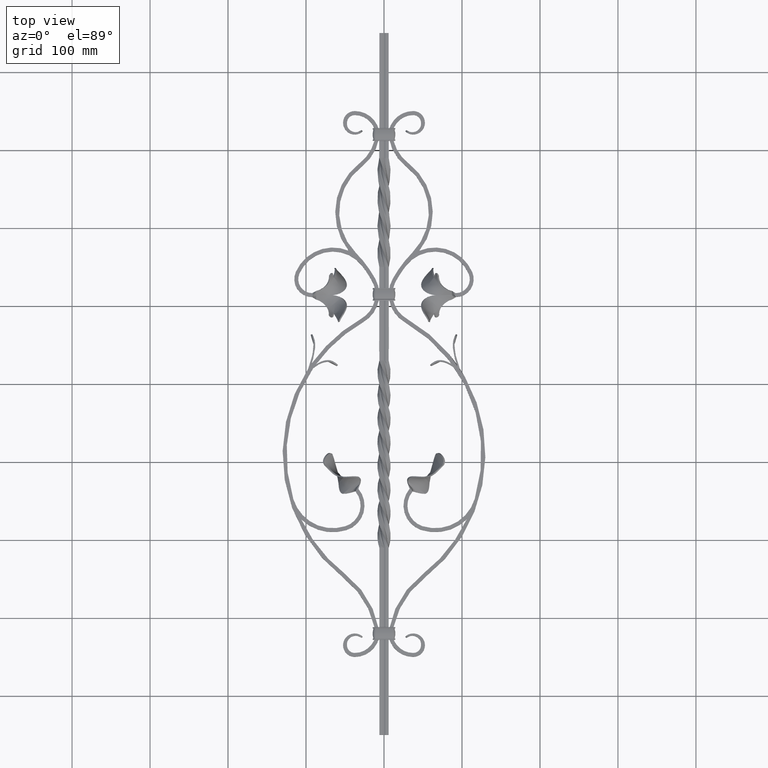
[diagram: clean part render]
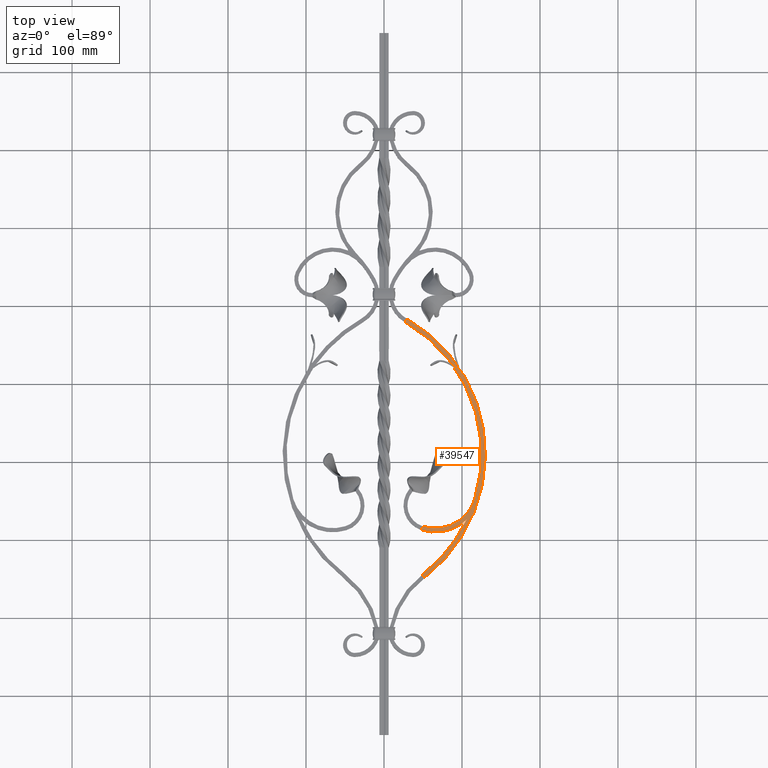
[diagram: same view with one face highlighted and labeled with its STEP entity id]
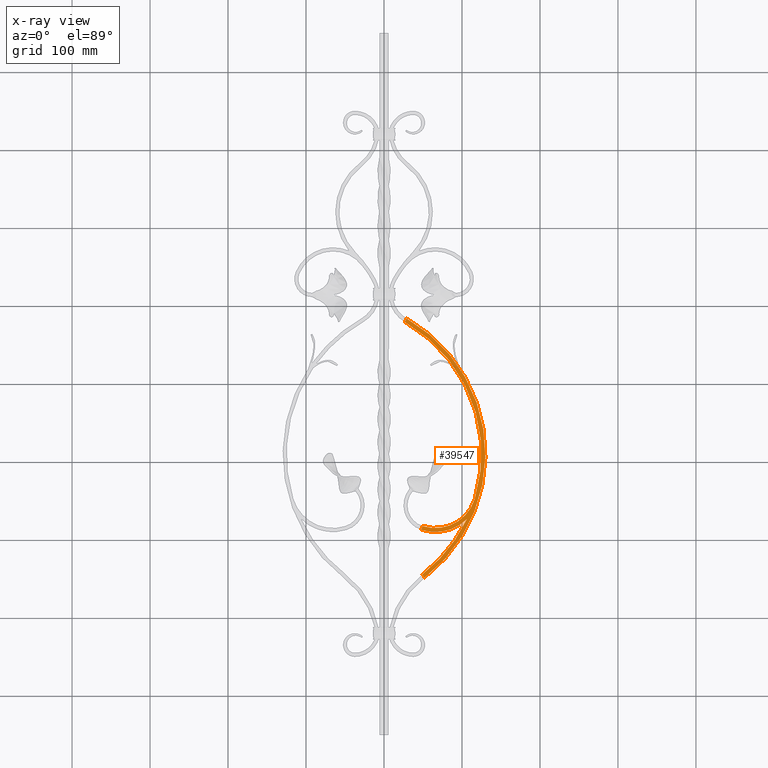
[diagram: x-ray of the same camera — body ghosted, the highlighted face saturated]
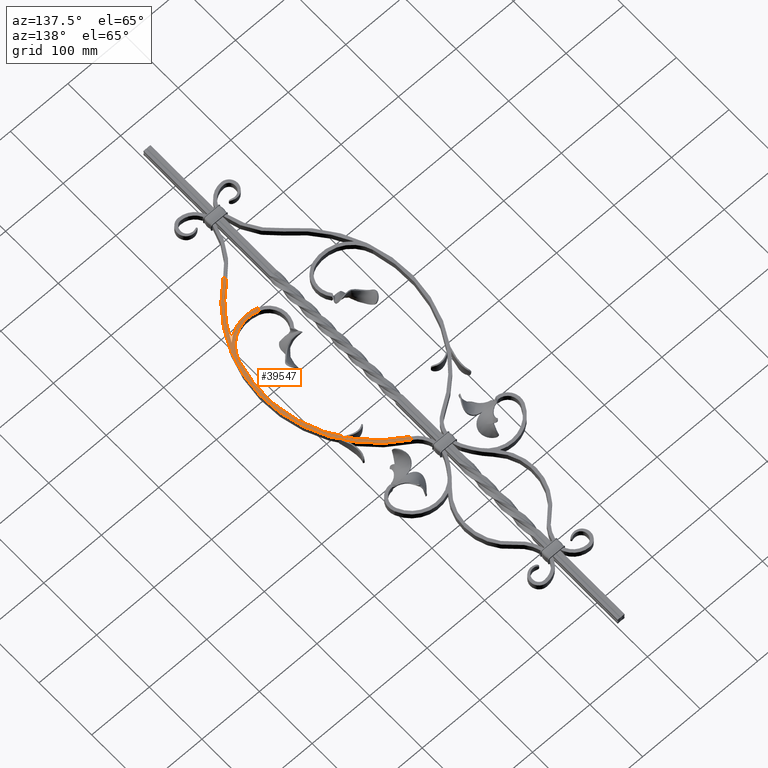
[diagram: same view with one face highlighted and labeled with its STEP entity id]
A machine part, top view. The second image highlights one B-rep face of the part: STEP entity #39547.
The next image is the same camera in x-ray: the body ghosted, the highlighted face saturated — about 0% of this face is hidden behind the body in this view.
A second angle (auxiliary view) of the same face is appended — the face is thin or edge-on in the first view.
In plain terms, the highlighted planar face has unit normal (0, 0, 1).
Its self-contained STEP definition (entity closure, byte-faithful):
#1256 = DIRECTION ( 'NONE',  ( 0.9553274066904219319, -0.2955495661071982361, 0.000000000000000000 ) ) ;
#1265 = DIRECTION ( 'NONE',  ( 1.000000000000000000, 0.000000000000000000, -0.000000000000000000 ) ) ;
#2281 = VERTEX_POINT ( 'NONE', #50925 ) ;
#3935 = ORIENTED_EDGE ( 'NONE', *, *, #8557, .T. ) ;
#4474 = CIRCLE ( 'NONE', #19596, 195.1081432478146667 ) ;
#5733 = PLANE ( 'NONE',  #27331 ) ;
#5918 = CARTESIAN_POINT ( 'NONE',  ( 26.69155741923248826, 79.40190552352058262, 6.000000000000000000 ) ) ;
#6349 = AXIS2_PLACEMENT_3D ( 'NONE', #37539, #11920, #16741 ) ;
#6594 = VERTEX_POINT ( 'NONE', #52899 ) ;
#8003 = CIRCLE ( 'NONE', #30603, 53.00000000000003553 ) ;
#8360 = CIRCLE ( 'NONE', #13093, 195.1081432478146667 ) ;
#8557 = EDGE_CURVE ( 'NONE', #6594, #14319, #8360, .T. ) ;
#8754 = DIRECTION ( 'NONE',  ( -0.000000000000000000, -0.000000000000000000, -1.000000000000000000 ) ) ;
#9268 = DIRECTION ( 'NONE',  ( 0.3060664284284465575, 0.9520101582383744265, -0.000000000000000000 ) ) ;
#9841 = DIRECTION ( 'NONE',  ( 0.000000000000000000, 0.000000000000000000, 1.000000000000000000 ) ) ;
#10037 = DIRECTION ( 'NONE',  ( -0.4961335752352382111, -0.8682462067433984743, -0.000000000000000000 ) ) ;
#11106 = CARTESIAN_POINT ( 'NONE',  ( 65.65166071071115539, -131.9999998333333338, 6.000000000000000000 ) ) ;
#11458 = VECTOR ( 'NONE', #44178, 1000.000000000000114 ) ;
#11854 = ORIENTED_EDGE ( 'NONE', *, *, #45545, .T. ) ;
#11920 = DIRECTION ( 'NONE',  ( -0.000000000000000000, -0.000000000000000000, -1.000000000000000000 ) ) ;
#12580 = CIRCLE ( 'NONE', #41352, 58.00000000000002132 ) ;
#13093 = AXIS2_PLACEMENT_3D ( 'NONE', #26151, #34404, #29889 ) ;
#13716 = VECTOR ( 'NONE', #10037, 1000.000000000000000 ) ;
#14319 = VERTEX_POINT ( 'NONE', #23046 ) ;
#15918 = EDGE_LOOP ( 'NONE', ( #53054, #23154, #36692, #11854, #21143, #38377, #55108, #3935 ) ) ;
#16044 = LINE ( 'NONE', #30330, #48819 ) ;
#16387 = LINE ( 'NONE', #26795, #13716 ) ;
#16741 = DIRECTION ( 'NONE',  ( 0.4961335752352377670, 0.8682462067433986963, 0.000000000000000000 ) ) ;
#19180 = CARTESIAN_POINT ( 'NONE',  ( 49.05424102247574325, -244.4911442810934545, 6.000000000000000000 ) ) ;
#19596 = AXIS2_PLACEMENT_3D ( 'NONE', #21591, #8754, #43078 ) ;
#19720 = VERTEX_POINT ( 'NONE', #49780 ) ;
#21143 = ORIENTED_EDGE ( 'NONE', *, *, #40263, .T. ) ;
#21591 = CARTESIAN_POINT ( 'NONE',  ( -70.10814324781469509, -89.99999975614214520, 6.000000000000000000 ) ) ;
#23046 = CARTESIAN_POINT ( 'NONE',  ( 49.05424102247577167, -244.4911442810934830, 6.000000000000000000 ) ) ;
#23154 = ORIENTED_EDGE ( 'NONE', *, *, #42707, .F. ) ;
#23277 = VERTEX_POINT ( 'NONE', #46014 ) ;
#23516 = VERTEX_POINT ( 'NONE', #49886 ) ;
#26151 = CARTESIAN_POINT ( 'NONE',  ( -70.10814324781469509, -89.99999975614214520, 6.000000000000000000 ) ) ;
#26774 = DIRECTION ( 'NONE',  ( -0.000000000000000000, -0.000000000000000000, -1.000000000000000000 ) ) ;
#26795 = CARTESIAN_POINT ( 'NONE',  ( 26.69155741923243141, 79.40190552352061104, 6.000000000000000000 ) ) ;
#27331 = AXIS2_PLACEMENT_3D ( 'NONE', #5918, #9841, #1265 ) ;
#28002 = FACE_OUTER_BOUND ( 'NONE', #15918, .T. ) ;
#29889 = DIRECTION ( 'NONE',  ( 0.4961335752352377670, 0.8682462067433986963, 0.000000000000000000 ) ) ;
#30330 = CARTESIAN_POINT ( 'NONE',  ( 47.89980786186133344, -187.2165890111591580, 6.000000000000000000 ) ) ;
#30603 = AXIS2_PLACEMENT_3D ( 'NONE', #11106, #37264, #49585 ) ;
#31296 = CARTESIAN_POINT ( 'NONE',  ( 65.65166071071115539, -131.9999998333333338, 6.000000000000000000 ) ) ;
#31314 = CARTESIAN_POINT ( 'NONE',  ( 47.89980786186134765, -187.2165890111591011, 6.000000000000000000 ) ) ;
#32195 = CARTESIAN_POINT ( 'NONE',  ( 52.10799322078705842, -248.4502600297560946, 6.000000000000000000 ) ) ;
#32217 = LINE ( 'NONE', #19180, #11458 ) ;
#33301 = VERTEX_POINT ( 'NONE', #32195 ) ;
#34404 = DIRECTION ( 'NONE',  ( -0.000000000000000000, -0.000000000000000000, -1.000000000000000000 ) ) ;
#35062 = EDGE_CURVE ( 'NONE', #33301, #14319, #32217, .T. ) ;
#36633 = EDGE_CURVE ( 'NONE', #46848, #2281, #16044, .T. ) ;
#36692 = ORIENTED_EDGE ( 'NONE', *, *, #46973, .T. ) ;
#37264 = DIRECTION ( 'NONE',  ( -0.000000000000000000, -0.000000000000000000, -1.000000000000000000 ) ) ;
#37539 = CARTESIAN_POINT ( 'NONE',  ( -70.10814324781469509, -89.99999975614214520, 6.000000000000000000 ) ) ;
#38377 = ORIENTED_EDGE ( 'NONE', *, *, #36633, .F. ) ;
#39547 = ADVANCED_FACE ( 'NONE', ( #28002 ), #5733, .T. ) ;
#40263 = EDGE_CURVE ( 'NONE', #23516, #2281, #8003, .T. ) ;
#41352 = AXIS2_PLACEMENT_3D ( 'NONE', #31296, #26774, #1256 ) ;
#41679 = EDGE_CURVE ( 'NONE', #6594, #46848, #12580, .T. ) ;
#42707 = EDGE_CURVE ( 'NONE', #23277, #33301, #52651, .T. ) ;
#43078 = DIRECTION ( 'NONE',  ( 0.4961335752352377670, 0.8682462067433986963, 0.000000000000000000 ) ) ;
#44178 = DIRECTION ( 'NONE',  ( -0.6107504396622622789, 0.7918231497325354251, -0.000000000000000000 ) ) ;
#45545 = EDGE_CURVE ( 'NONE', #19720, #23516, #4474, .T. ) ;
#46014 = CARTESIAN_POINT ( 'NONE',  ( 29.17222529540864784, 83.74313655723759098, 6.000000000000000000 ) ) ;
#46848 = VERTEX_POINT ( 'NONE', #31314 ) ;
#46973 = EDGE_CURVE ( 'NONE', #23277, #19720, #16387, .T. ) ;
#48819 = VECTOR ( 'NONE', #9268, 1000.000000000000000 ) ;
#49585 = DIRECTION ( 'NONE',  ( 0.9553274066904219319, -0.2955495661071984026, 0.000000000000000000 ) ) ;
#49780 = CARTESIAN_POINT ( 'NONE',  ( 26.69155741923244562, 79.40190552352061104, 6.000000000000000000 ) ) ;
#49886 = CARTESIAN_POINT ( 'NONE',  ( 116.2840132653034431, -147.6641268370148055, 6.000000000000000000 ) ) ;
#50925 = CARTESIAN_POINT ( 'NONE',  ( 49.43014000400356167, -182.4565382199672285, 6.000000000000000000 ) ) ;
#52651 = CIRCLE ( 'NONE', #6349, 200.1081432478146098 ) ;
#52899 = CARTESIAN_POINT ( 'NONE',  ( 106.2805471445299474, -173.3919505864430164, 6.000000000000000000 ) ) ;
#53054 = ORIENTED_EDGE ( 'NONE', *, *, #35062, .F. ) ;
#55108 = ORIENTED_EDGE ( 'NONE', *, *, #41679, .F. ) ;